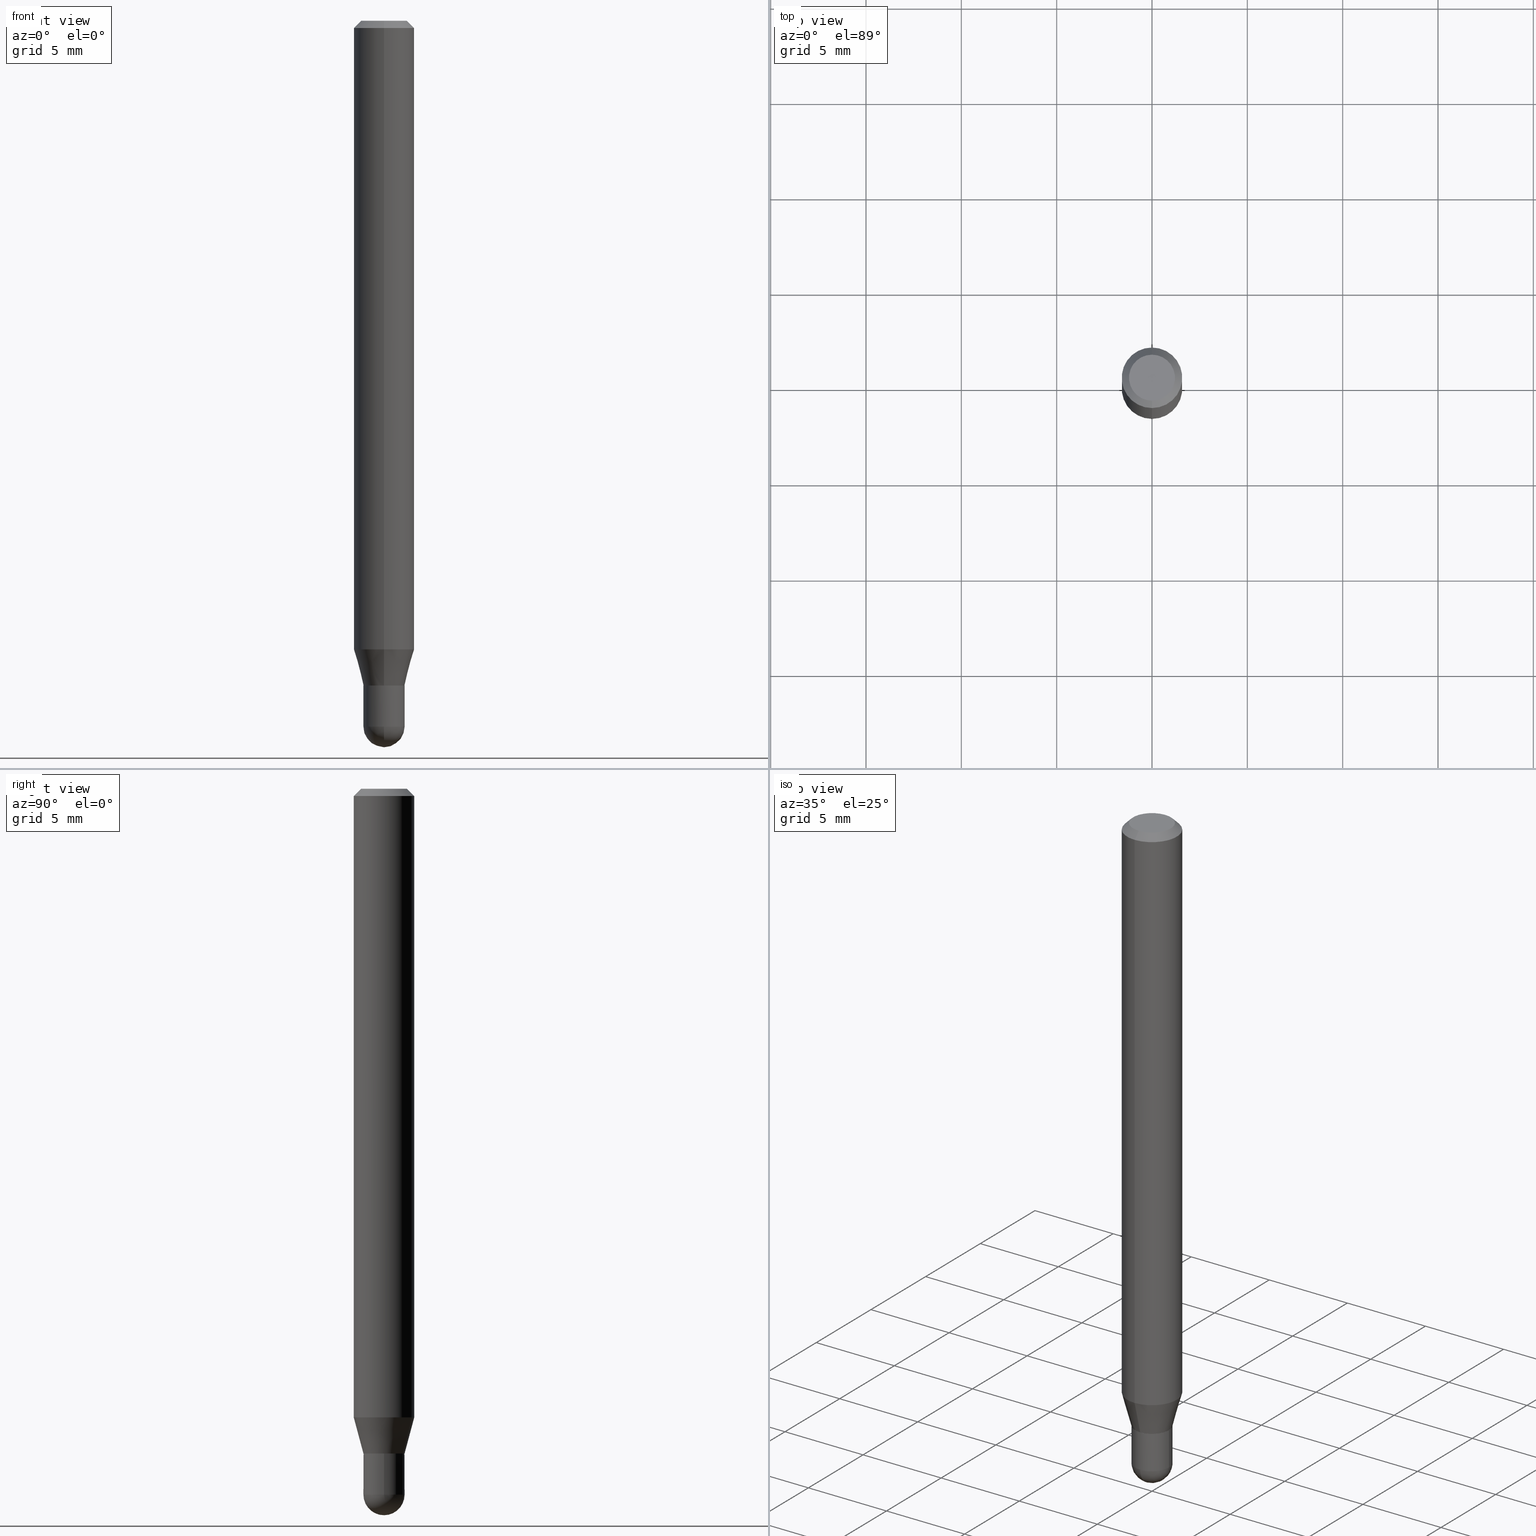
[diagram: canonical four-view strip — front | top / right | iso, engineering-drawing reading convention]
A machine part, canonical four-view strip (front | top / right | iso — engineering-drawing reading convention). The complete STEP part file that produces these views, byte-faithful:
ISO-10303-21;
HEADER;
FILE_DESCRIPTION (( 'STEP AP203' ),
    '1' );
FILE_NAME ('04379.STEP',
    '2024-03-08T19:00:55',
    ( '' ),
    ( '' ),
    'SwSTEP 2.0',
    'SolidWorks 2023',
    '' );
FILE_SCHEMA (( 'CONFIG_CONTROL_DESIGN' ));
ENDSEC;

DATA;
#1 = CONICAL_SURFACE ( 'NONE', #106, 0.06250000000000000000, 0.7853981633974483900 ) ;
#2 = FACE_OUTER_BOUND ( 'NONE', #251, .T. ) ;
#3 = EDGE_LOOP ( 'NONE', ( #185, #88, #368, #208 ) ) ;
#4 = CC_DESIGN_APPROVAL ( #33, ( #69 ) ) ;
#5 = APPROVAL ( #99, 'UNSPECIFIED' ) ;
#6 = DIRECTION ( 'NONE',  ( -2.445468806185136597E-29, 3.491481338843145583E-15, 1.000000000000000000 ) ) ;
#7 = DIRECTION ( 'NONE',  ( -6.982962677686265922E-15, -1.000000000000000000, 3.491555958414317221E-15 ) ) ;
#8 = VERTEX_POINT ( 'NONE', #51 ) ;
#9 = DIRECTION ( 'NONE',  ( -6.982962677686266711E-15, -1.000000000000000000, 3.491555958414317615E-15 ) ) ;
#10 = ORIENTED_EDGE ( 'NONE', *, *, #238, .F. ) ;
#11 = CC_DESIGN_DATE_AND_TIME_ASSIGNMENT ( #416, #488, ( #140 ) ) ;
#12 = ORIENTED_EDGE ( 'NONE', *, *, #380, .T. ) ;
#13 = ORIENTED_EDGE ( 'NONE', *, *, #115, .T. ) ;
#14 = AXIS2_PLACEMENT_3D ( 'NONE', #37, #508, #275 ) ;
#15 = ORIENTED_EDGE ( 'NONE', *, *, #303, .T. ) ;
#16 = DATE_AND_TIME ( #226, #75 ) ;
#17 = ORIENTED_EDGE ( 'NONE', *, *, #194, .T. ) ;
#18 = PERSON_AND_ORGANIZATION ( #449, #464 ) ;
#19 = ADVANCED_FACE ( 'NONE', ( #79 ), #346, .T. ) ;
#20 = DIRECTION ( 'NONE',  ( -6.982962677686265922E-15, -1.000000000000000000, 6.427877632151214487E-15 ) ) ;
#21 = APPROVAL_STATUS ( 'not_yet_approved' ) ;
#22 = CARTESIAN_POINT ( 'NONE',  ( 4.364351673553919652E-16, 0.06249999999999995143, -0.01500000000000028394 ) ) ;
#23 = VECTOR ( 'NONE', #480, 39.37007874015748143 ) ;
#24 = DIRECTION ( 'NONE',  ( 1.000000000000000000, -6.982962677686265922E-15, 4.883557194083112901E-29 ) ) ;
#25 = PERSON_AND_ORGANIZATION ( #449, #464 ) ;
#26 = DIRECTION ( 'NONE',  ( -2.445416699617084767E-29, 3.491555958414317221E-15, 1.000000000000000000 ) ) ;
#27 = CARTESIAN_POINT ( 'NONE',  ( -2.932844324627895747E-16, -0.04200000000000478351, -1.372500000000000275 ) ) ;
#28 = VECTOR ( 'NONE', #232, 39.37007874015748143 ) ;
#29 = APPLICATION_CONTEXT ( 'configuration controlled 3d designs of mechanical parts and assemblies' ) ;
#30 = ORIENTED_EDGE ( 'NONE', *, *, #511, .T. ) ;
#31 = DIRECTION ( 'NONE',  ( -2.445416699617084767E-29, 3.491555958414317221E-15, 1.000000000000000000 ) ) ;
#32 = FACE_OUTER_BOUND ( 'NONE', #412, .T. ) ;
#33 = APPROVAL ( #21, 'UNSPECIFIED' ) ;
#34 = CARTESIAN_POINT ( 'NONE',  ( 3.668125049425643686E-31, -5.237333937621498511E-17, -0.01500000000000006710 ) ) ;
#35 = CIRCLE ( 'NONE', #14, 0.04250000000000020428 ) ;
#36 = ORIENTED_EDGE ( 'NONE', *, *, #80, .T. ) ;
#37 = CARTESIAN_POINT ( 'NONE',  ( 3.356334420224448716E-29, -4.792160552923651095E-15, -1.372500000000000275 ) ) ;
#38 = VERTEX_POINT ( 'NONE', #481 ) ;
#39 = EDGE_CURVE ( 'NONE', #57, #49, #240, .T. ) ;
#40 = CARTESIAN_POINT ( 'NONE',  ( -2.967759138016342088E-16, -0.04250000000000499212, -1.372499999999999831 ) ) ;
#41 = CC_DESIGN_PERSON_AND_ORGANIZATION_ASSIGNMENT ( #408, #377, ( #389 ) ) ;
#42 = CARTESIAN_POINT ( 'NONE',  ( 3.356334420224448716E-29, -4.792160552923651095E-15, -1.372500000000000275 ) ) ;
#43 = CARTESIAN_POINT ( 'NONE',  ( 3.356405936489099934E-29, -4.792058137562217412E-15, -1.372500000000000275 ) ) ;
#44 = CIRCLE ( 'NONE', #386, 0.04249999999999995448 ) ;
#45 = FACE_OUTER_BOUND ( 'NONE', #317, .T. ) ;
#46 = EDGE_CURVE ( 'NONE', #164, #403, #413, .T. ) ;
#47 = ORIENTED_EDGE ( 'NONE', *, *, #353, .T. ) ;
#48 = ORIENTED_EDGE ( 'NONE', *, *, #349, .T. ) ;
#49 = VERTEX_POINT ( 'NONE', #139 ) ;
#50 = LINE ( 'NONE', #391, #150 ) ;
#51 = CARTESIAN_POINT ( 'NONE',  ( 0.04250000000000000999, -5.237222008264719754E-15, -1.457500000000000240 ) ) ;
#52 = LINE ( 'NONE', #399, #424 ) ;
#53 = VERTEX_POINT ( 'NONE', #178 ) ;
#54 = DIRECTION ( 'NONE',  ( -6.982962677686266711E-15, -1.000000000000000000, 6.427877632151260241E-15 ) ) ;
#55 = AXIS2_PLACEMENT_3D ( 'NONE', #321, #213, #245 ) ;
#56 = ORIENTED_EDGE ( 'NONE', *, *, #115, .F. ) ;
#57 = VERTEX_POINT ( 'NONE', #27 ) ;
#58 = CARTESIAN_POINT ( 'NONE',  ( 3.560636328285825248E-29, -5.094038800260261442E-15, -1.457500000000000240 ) ) ;
#59 = DIRECTION ( 'NONE',  ( -1.000000000000000000, 6.982962677686265922E-15, -4.883557194083112340E-29 ) ) ;
#60 = DIRECTION ( 'NONE',  ( 7.105427357601001070E-15, 1.000000000000000000, 0.000000000000000000 ) ) ;
#61 = CLOSED_SHELL ( 'NONE', ( #133, #407, #252, #101, #296 ) ) ;
#62 = CIRCLE ( 'NONE', #289, 0.04250000000000000999 ) ;
#63 = FACE_OUTER_BOUND ( 'NONE', #3, .T. ) ;
#64 = CC_DESIGN_PERSON_AND_ORGANIZATION_ASSIGNMENT ( #25, #104, ( #180 ) ) ;
#65 = COORDINATED_UNIVERSAL_TIME_OFFSET ( 5, 0, .BEHIND. ) ;
#66 = CARTESIAN_POINT ( 'NONE',  ( 1.601666985731479033E-45, -2.286853569087802124E-31, -6.549668962276554042E-17 ) ) ;
#67 = DIRECTION ( 'NONE',  ( -6.982962677686265922E-15, -1.000000000000000000, 3.483106191921935554E-15 ) ) ;
#68 = CIRCLE ( 'NONE', #463, 0.06250000000000000000 ) ;
#69 = PRODUCT_DEFINITION_FORMATION_WITH_SPECIFIED_SOURCE ( 'ANY', '', #389, .NOT_KNOWN. ) ;
#70 = CARTESIAN_POINT ( 'NONE',  ( 3.840629472727447874E-16, 0.04749999999999999362, -2.313455976474456035E-16 ) ) ;
#71 = DIRECTION ( 'NONE',  ( 1.839019923739650408E-15, 0.2588190451025320082, 0.9659258262890650926 ) ) ;
#72 = PRODUCT_DEFINITION_SHAPE ( 'NONE', 'NONE',  #180 ) ;
#73 = DIRECTION ( 'NONE',  ( -2.445468806185136597E-29, 3.491481338843145583E-15, 1.000000000000000000 ) ) ;
#74 = ORIENTED_EDGE ( 'NONE', *, *, #475, .T. ) ;
#75 = LOCAL_TIME ( 14, 0, 55.00000000000000000, #65 ) ;
#76 = CARTESIAN_POINT ( 'NONE',  ( 4.440892098500625669E-16, 0.06250000000000000000, -2.182222474008948016E-16 ) ) ;
#77 = ORIENTED_EDGE ( 'NONE', *, *, #93, .F. ) ;
#78 = DIRECTION ( 'NONE',  ( -2.445416699617084767E-29, 3.491555958414317221E-15, 1.000000000000000000 ) ) ;
#79 = FACE_OUTER_BOUND ( 'NONE', #125, .T. ) ;
#80 = EDGE_CURVE ( 'NONE', #286, #441, #278, .T. ) ;
#81 = CARTESIAN_POINT ( 'NONE',  ( 0.000000000000000000, 0.000000000000000000, 0.000000000000000000 ) ) ;
#82 = ORIENTED_EDGE ( 'NONE', *, *, #283, .T. ) ;
#83 = CIRCLE ( 'NONE', #374, 0.04250000000000000999 ) ;
#84 = APPROVAL ( #107, 'UNSPECIFIED' ) ;
#85 = CARTESIAN_POINT ( 'NONE',  ( 0.000000000000000000, 0.000000000000000000, 0.000000000000000000 ) ) ;
#86 = ORIENTED_EDGE ( 'NONE', *, *, #225, .T. ) ;
#87 = CC_DESIGN_APPROVAL ( #5, ( #140 ) ) ;
#88 = ORIENTED_EDGE ( 'NONE', *, *, #137, .T. ) ;
#89 = DIRECTION ( 'NONE',  ( -6.982962677686265922E-15, -1.000000000000000000, 3.491555958414316826E-15 ) ) ;
#90 = EDGE_LOOP ( 'NONE', ( #248, #12 ) ) ;
#91 = DIRECTION ( 'NONE',  ( -2.445416699617084767E-29, 3.491555958414317221E-15, 1.000000000000000000 ) ) ;
#92 = ORIENTED_EDGE ( 'NONE', *, *, #471, .F. ) ;
#93 = EDGE_CURVE ( 'NONE', #8, #164, #227, .T. ) ;
#94 = APPROVAL_DATE_TIME ( #135, #84 ) ;
#95 = AXIS2_PLACEMENT_3D ( 'NONE', #66, #503, #146 ) ;
#96 = DIRECTION ( 'NONE',  ( -6.982962677686265922E-15, -1.000000000000000000, 4.370956789862821150E-15 ) ) ;
#97 = AXIS2_PLACEMENT_3D ( 'NONE', #85, #132, #282 ) ;
#98 = ORIENTED_EDGE ( 'NONE', *, *, #225, .F. ) ;
#99 = APPROVAL_STATUS ( 'not_yet_approved' ) ;
#100 = DIRECTION ( 'NONE',  ( -6.982962677686265922E-15, -1.000000000000000000, 4.370956789862821150E-15 ) ) ;
#101 = ADVANCED_FACE ( 'NONE', ( #63 ), #103, .T. ) ;
#102 = APPLICATION_PROTOCOL_DEFINITION ( 'international standard', 'config_control_design', 1994, #29 ) ;
#103 = SPHERICAL_SURFACE ( 'NONE', #118, 0.04249999999999995448 ) ;
#104 = PERSON_AND_ORGANIZATION_ROLE ( 'creator' ) ;
#105 = DIRECTION ( 'NONE',  ( 4.937700262164548042E-15, 0.7071067811865451302, -0.7071067811865499042 ) ) ;
#106 = AXIS2_PLACEMENT_3D ( 'NONE', #425, #345, #116 ) ;
#107 = APPROVAL_STATUS ( 'not_yet_approved' ) ;
#108 = CARTESIAN_POINT ( 'NONE',  ( 3.002043058586749878E-16, 0.04199999999999520783, -1.372500000000000719 ) ) ;
#109 = PLANE ( 'NONE',  #348 ) ;
#110 = PLANE ( 'NONE',  #491 ) ;
#111 = AXIS2_PLACEMENT_3D ( 'NONE', #376, #337, #305 ) ;
#112 = AXIS2_PLACEMENT_3D ( 'NONE', #402, #163, #54 ) ;
#113 = CC_DESIGN_DATE_AND_TIME_ASSIGNMENT ( #262, #256, ( #180 ) ) ;
#114 = CARTESIAN_POINT ( 'NONE',  ( 3.316907271900976096E-16, 0.04749999999999999362, -1.985972528360628209E-16 ) ) ;
#115 = EDGE_CURVE ( 'NONE', #388, #49, #204, .T. ) ;
#116 = DIRECTION ( 'NONE',  ( 6.982962677686265922E-15, 1.000000000000000000, -3.483106191921935554E-15 ) ) ;
#117 = CARTESIAN_POINT ( 'NONE',  ( 0.000000000000000000, 0.000000000000000000, 0.000000000000000000 ) ) ;
#118 = AXIS2_PLACEMENT_3D ( 'NONE', #500, #24, #20 ) ;
#119 = CC_DESIGN_SECURITY_CLASSIFICATION ( #140, ( #69 ) ) ;
#120 = DIRECTION ( 'NONE',  ( -6.982962677686265922E-15, -1.000000000000000000, 6.504399984914913214E-15 ) ) ;
#121 = CARTESIAN_POINT ( 'NONE',  ( -3.773273898774340269E-16, -0.04749999999999999362, 1.003522184019144980E-16 ) ) ;
#122 = ORIENTED_EDGE ( 'NONE', *, *, #471, .T. ) ;
#123 = ORIENTED_EDGE ( 'NONE', *, *, #349, .F. ) ;
#124 = DIRECTION ( 'NONE',  ( 5.024295867785445738E-15, 0.7071067811861817543, 0.7071067811869132802 ) ) ;
#125 = EDGE_LOOP ( 'NONE', ( #30, #218, #400, #123 ) ) ;
#126 = ORIENTED_EDGE ( 'NONE', *, *, #479, .T. ) ;
#127 = ORIENTED_EDGE ( 'NONE', *, *, #511, .F. ) ;
#128 = AXIS2_PLACEMENT_3D ( 'NONE', #117, #431, #506 ) ;
#129 = CYLINDRICAL_SURFACE ( 'NONE', #130, 0.06250000000000000000 ) ;
#130 = AXIS2_PLACEMENT_3D ( 'NONE', #81, #91, #89 ) ;
#131 = EDGE_LOOP ( 'NONE', ( #478, #36, #254, #98 ) ) ;
#132 = DIRECTION ( 'NONE',  ( -2.445416699617084767E-29, 3.491555958414317221E-15, 1.000000000000000000 ) ) ;
#133 = ADVANCED_FACE ( 'NONE', ( #446 ), #371, .T. ) ;
#134 = ORIENTED_EDGE ( 'NONE', *, *, #141, .T. ) ;
#135 = DATE_AND_TIME ( #268, #281 ) ;
#136 = ORIENTED_EDGE ( 'NONE', *, *, #462, .F. ) ;
#137 = EDGE_CURVE ( 'NONE', #286, #181, #44, .T. ) ;
#138 = AXIS2_PLACEMENT_3D ( 'NONE', #43, #6, #162 ) ;
#139 = CARTESIAN_POINT ( 'NONE',  ( -2.967759138016294264E-16, -0.04250000000000431211, -1.372000000000000108 ) ) ;
#140 = SECURITY_CLASSIFICATION ( '', '', #330 ) ;
#141 = EDGE_CURVE ( 'NONE', #322, #49, #174, .T. ) ;
#142 = EDGE_LOOP ( 'NONE', ( #398, #363, #437, #56 ) ) ;
#143 = APPROVAL_ROLE ( '' ) ;
#144 = DIRECTION ( 'NONE',  ( -6.982962677686266711E-15, -1.000000000000000000, 0.000000000000000000 ) ) ;
#145 =( NAMED_UNIT ( * ) SI_UNIT ( $, .STERADIAN. ) SOLID_ANGLE_UNIT ( ) );
#146 = DIRECTION ( 'NONE',  ( -6.982962677686266711E-15, -1.000000000000000000, 3.491555958414317615E-15 ) ) ;
#147 = DIRECTION ( 'NONE',  ( 1.000000000000000000, -6.982962677686266711E-15, 4.876176775795935793E-29 ) ) ;
#148 = VECTOR ( 'NONE', #343, 39.37007874015748143 ) ;
#149 = VECTOR ( 'NONE', #451, 39.37007874015748143 ) ;
#150 = VECTOR ( 'NONE', #324, 39.37007874015748143 ) ;
#151 = CARTESIAN_POINT ( 'NONE',  ( 3.356334420224449277E-29, -4.792160552923651884E-15, -1.372500000000000497 ) ) ;
#152 = FACE_OUTER_BOUND ( 'NONE', #90, .T. ) ;
#153 = CARTESIAN_POINT ( 'NONE',  ( -4.287811248607203282E-16, -0.06250000000000005551, -0.01499999999999984852 ) ) ;
#154 = ORIENTED_EDGE ( 'NONE', *, *, #380, .F. ) ;
#155 = VECTOR ( 'NONE', #512, 39.37007874015748143 ) ;
#156 = LINE ( 'NONE', #351, #155 ) ;
#157 = FACE_OUTER_BOUND ( 'NONE', #474, .T. ) ;
#158 = DIRECTION ( 'NONE',  ( -6.982962677686265922E-15, -1.000000000000000000, 6.427877632151176622E-15 ) ) ;
#159 = CIRCLE ( 'NONE', #272, 0.04199999999999999567 ) ;
#160 = ORIENTED_EDGE ( 'NONE', *, *, #212, .T. ) ;
#161 =( LENGTH_UNIT ( ) NAMED_UNIT ( * ) SI_UNIT ( $, .METRE. ) );
#162 = DIRECTION ( 'NONE',  ( 1.000000000000000000, -6.982962677686276177E-15, 0.000000000000000000 ) ) ;
#163 = DIRECTION ( 'NONE',  ( -2.445416699617084767E-29, 3.491555958414317221E-15, 1.000000000000000000 ) ) ;
#164 = VERTEX_POINT ( 'NONE', #406 ) ;
#165 = FACE_OUTER_BOUND ( 'NONE', #298, .T. ) ;
#166 = ORIENTED_EDGE ( 'NONE', *, *, #93, .T. ) ;
#167 = VERTEX_POINT ( 'NONE', #456 ) ;
#168 = CARTESIAN_POINT ( 'NONE',  ( 3.019806626980780501E-16, 0.04249999999999488215, -1.457500000000000462 ) ) ;
#169 = VERTEX_POINT ( 'NONE', #108 ) ;
#170 = EDGE_CURVE ( 'NONE', #57, #169, #159, .T. ) ;
#171 = APPROVAL_DATE_TIME ( #16, #5 ) ;
#172 = ORIENTED_EDGE ( 'NONE', *, *, #335, .T. ) ;
#173 = PERSON_AND_ORGANIZATION_ROLE ( 'design_supplier' ) ;
#174 = LINE ( 'NONE', #489, #149 ) ;
#175 = ORIENTED_EDGE ( 'NONE', *, *, #170, .F. ) ;
#176 = PERSON_AND_ORGANIZATION_ROLE ( 'classification_officer' ) ;
#177 = CIRCLE ( 'NONE', #423, 0.06250000000000000000 ) ;
#178 = CARTESIAN_POINT ( 'NONE',  ( -0.04250000000000000999, -4.638465431765009073E-15, -1.457500000000000240 ) ) ;
#179 = AXIS2_PLACEMENT_3D ( 'NONE', #216, #366, #158 ) ;
#180 = PRODUCT_DEFINITION ( 'UNKNOWN', '', #69, #183 ) ;
#181 = VERTEX_POINT ( 'NONE', #411 ) ;
#182 = PERSON_AND_ORGANIZATION ( #449, #464 ) ;
#183 = DESIGN_CONTEXT ( 'detailed design', #29, 'design' ) ;
#184 = DIRECTION ( 'NONE',  ( -6.982962677686266711E-15, -1.000000000000000000, 3.491555958414317615E-15 ) ) ;
#185 = ORIENTED_EDGE ( 'NONE', *, *, #80, .F. ) ;
#186 =( NAMED_UNIT ( * ) PLANE_ANGLE_UNIT ( ) SI_UNIT ( $, .RADIAN. ) );
#187 = DIRECTION ( 'NONE',  ( -6.982962677686266711E-15, -1.000000000000000000, 6.427877632151260241E-15 ) ) ;
#188 = EDGE_CURVE ( 'NONE', #38, #323, #404, .T. ) ;
#189 = DIRECTION ( 'NONE',  ( -2.445416699617084767E-29, 3.491555958414317221E-15, 1.000000000000000000 ) ) ;
#190 = EDGE_CURVE ( 'NONE', #394, #293, #414, .T. ) ;
#191 = DIRECTION ( 'NONE',  ( 2.445416699617084767E-29, -3.491555958414317221E-15, -1.000000000000000000 ) ) ;
#192 = EDGE_LOOP ( 'NONE', ( #510, #47, #493, #77, #172 ) ) ;
#193 = CARTESIAN_POINT ( 'NONE',  ( 3.564270785014837509E-29, -5.088834051363884851E-15, -1.457500000000000240 ) ) ;
#194 = EDGE_CURVE ( 'NONE', #323, #38, #355, .T. ) ;
#195 = CARTESIAN_POINT ( 'NONE',  ( -2.967759138016342088E-16, -0.04250000000000499212, -1.372499999999999831 ) ) ;
#196 = AXIS2_PLACEMENT_3D ( 'NONE', #325, #211, #361 ) ;
#197 = AXIS2_PLACEMENT_3D ( 'NONE', #151, #220, #222 ) ;
#198 = ADVANCED_FACE ( 'NONE', ( #260 ), #495, .F. ) ;
#199 = AXIS2_PLACEMENT_3D ( 'NONE', #455, #452, #405 ) ;
#200 = LINE ( 'NONE', #76, #28 ) ;
#201 = LINE ( 'NONE', #195, #482 ) ;
#202 = ADVANCED_FACE ( 'NONE', ( #409 ), #395, .T. ) ;
#203 = EDGE_LOOP ( 'NONE', ( #175, #246 ) ) ;
#204 = CIRCLE ( 'NONE', #264, 0.04249999999999964917 ) ;
#205 = CONICAL_SURFACE ( 'NONE', #242, 0.04250000000000020428, 0.2617993877991576235 ) ;
#206 = CIRCLE ( 'NONE', #319, 0.04250000000000000999 ) ;
#207 = PLANE ( 'NONE',  #387 ) ;
#208 = ORIENTED_EDGE ( 'NONE', *, *, #247, .F. ) ;
#209 = ORIENTED_EDGE ( 'NONE', *, *, #212, .F. ) ;
#210 = DIRECTION ( 'NONE',  ( -2.445468806185136597E-29, 3.491481338843145583E-15, 1.000000000000000000 ) ) ;
#211 = DIRECTION ( 'NONE',  ( -2.445416699617084767E-29, 3.491555958414317221E-15, 1.000000000000000000 ) ) ;
#212 = EDGE_CURVE ( 'NONE', #293, #444, #372, .T. ) ;
#213 = DIRECTION ( 'NONE',  ( -2.445468806185136597E-29, 3.491481338843145583E-15, 1.000000000000000000 ) ) ;
#214 = ORIENTED_EDGE ( 'NONE', *, *, #170, .T. ) ;
#215 = CONICAL_SURFACE ( 'NONE', #501, 0.04199999999999999567, 0.7853981633969275844 ) ;
#216 = CARTESIAN_POINT ( 'NONE',  ( 3.356334420224448716E-29, -4.792160552923651095E-15, -1.372500000000000275 ) ) ;
#217 = APPROVAL_PERSON_ORGANIZATION ( #182, #84, #223 ) ;
#218 = ORIENTED_EDGE ( 'NONE', *, *, #312, .T. ) ;
#219 = DIRECTION ( 'NONE',  ( -2.445416699617084767E-29, 3.491555958414317221E-15, 1.000000000000000000 ) ) ;
#220 = DIRECTION ( 'NONE',  ( -2.445416699617084767E-29, 3.491555958414317221E-15, 1.000000000000000000 ) ) ;
#221 = AXIS2_PLACEMENT_3D ( 'NONE', #436, #290, #396 ) ;
#222 = DIRECTION ( 'NONE',  ( -6.982962677686265922E-15, -1.000000000000000000, 6.504399984914913214E-15 ) ) ;
#223 = APPROVAL_ROLE ( '' ) ;
#224 = DIRECTION ( 'NONE',  ( -6.982962677686265922E-15, -1.000000000000000000, 6.504399984914913214E-15 ) ) ;
#225 = EDGE_CURVE ( 'NONE', #181, #8, #379, .T. ) ;
#226 = CALENDAR_DATE ( 2024, 8, 3 ) ;
#227 = LINE ( 'NONE', #308, #148 ) ;
#228 = ADVANCED_FACE ( 'NONE', ( #417 ), #215, .T. ) ;
#229 = CARTESIAN_POINT ( 'NONE',  ( 3.564270785014837509E-29, -5.088834051363884851E-15, -1.457500000000000240 ) ) ;
#230 = LOCAL_TIME ( 14, 0, 55.00000000000000000, #306 ) ;
#231 = ORIENTED_EDGE ( 'NONE', *, *, #258, .T. ) ;
#232 = DIRECTION ( 'NONE',  ( -2.445416699617084487E-29, 3.491555958414317221E-15, 1.000000000000000000 ) ) ;
#233 = DIRECTION ( 'NONE',  ( -2.445416699617084767E-29, 3.491555958414317221E-15, 1.000000000000000000 ) ) ;
#234 = DIRECTION ( 'NONE',  ( 6.982962677686265922E-15, 1.000000000000000000, -3.483106191921935554E-15 ) ) ;
#235 = VECTOR ( 'NONE', #71, 39.37007874015748854 ) ;
#236 = AXIS2_PLACEMENT_3D ( 'NONE', #485, #253, #120 ) ;
#237 = CARTESIAN_POINT ( 'NONE',  ( 4.440892098500944664E-16, 0.06249999999999550360, -1.297858983848626080 ) ) ;
#238 = EDGE_CURVE ( 'NONE', #293, #394, #342, .T. ) ;
#239 = DIRECTION ( 'NONE',  ( 1.000000000000000000, -6.982962677686273810E-15, 0.000000000000000000 ) ) ;
#240 = LINE ( 'NONE', #291, #364 ) ;
#241 = ORIENTED_EDGE ( 'NONE', *, *, #353, .F. ) ;
#242 = AXIS2_PLACEMENT_3D ( 'NONE', #311, #313, #509 ) ;
#243 = LOCAL_TIME ( 14, 0, 55.00000000000000000, #265 ) ;
#244 = ORIENTED_EDGE ( 'NONE', *, *, #194, .F. ) ;
#245 = DIRECTION ( 'NONE',  ( 1.000000000000000000, -6.982962677686276177E-15, 0.000000000000000000 ) ) ;
#246 = ORIENTED_EDGE ( 'NONE', *, *, #440, .F. ) ;
#247 = EDGE_CURVE ( 'NONE', #441, #53, #62, .T. ) ;
#248 = ORIENTED_EDGE ( 'NONE', *, *, #46, .T. ) ;
#249 = ORIENTED_EDGE ( 'NONE', *, *, #315, .T. ) ;
#250 = CARTESIAN_POINT ( 'NONE',  ( 3.019806626980745003E-16, 0.04249999999999498623, -1.372000000000000552 ) ) ;
#251 = EDGE_LOOP ( 'NONE', ( #261, #17, #126, #505 ) ) ;
#252 = ADVANCED_FACE ( 'NONE', ( #152 ), #110, .F. ) ;
#253 = DIRECTION ( 'NONE',  ( -2.445416699617084767E-29, 3.491555958414317221E-15, 1.000000000000000000 ) ) ;
#254 = ORIENTED_EDGE ( 'NONE', *, *, #335, .F. ) ;
#255 = VECTOR ( 'NONE', #105, 39.37007874015748143 ) ;
#256 = DATE_TIME_ROLE ( 'creation_date' ) ;
#257 = CARTESIAN_POINT ( 'NONE',  ( 3.355111711874641122E-29, -4.790414774944444079E-15, -1.372000000000000330 ) ) ;
#258 = EDGE_CURVE ( 'NONE', #444, #473, #177, .T. ) ;
#259 = PERSON_AND_ORGANIZATION ( #449, #464 ) ;
#260 = FACE_OUTER_BOUND ( 'NONE', #359, .T. ) ;
#261 = ORIENTED_EDGE ( 'NONE', *, *, #303, .F. ) ;
#262 = DATE_AND_TIME ( #339, #492 ) ;
#263 = CARTESIAN_POINT ( 'NONE',  ( 3.356334420224449277E-29, -4.792160552923651884E-15, -1.372500000000000497 ) ) ;
#264 = AXIS2_PLACEMENT_3D ( 'NONE', #257, #219, #187 ) ;
#265 = COORDINATED_UNIVERSAL_TIME_OFFSET ( 5, 0, .BEHIND. ) ;
#266 = CARTESIAN_POINT ( 'NONE',  ( 0.000000000000000000, 0.000000000000000000, 0.000000000000000000 ) ) ;
#267 = ADVANCED_FACE ( 'NONE', ( #277 ), #109, .F. ) ;
#268 = CALENDAR_DATE ( 2024, 8, 3 ) ;
#269 = DIRECTION ( 'NONE',  ( -2.445416699617084767E-29, 3.491555958414317221E-15, 1.000000000000000000 ) ) ;
#270 = CYLINDRICAL_SURFACE ( 'NONE', #128, 0.04250000000000000999 ) ;
#271 = DIRECTION ( 'NONE',  ( 6.982962677686265922E-15, 1.000000000000000000, -3.491555958414317221E-15 ) ) ;
#272 = AXIS2_PLACEMENT_3D ( 'NONE', #263, #189, #300 ) ;
#273 = CC_DESIGN_APPROVAL ( #84, ( #180 ) ) ;
#274 = ADVANCED_FACE ( 'NONE', ( #344 ), #205, .T. ) ;
#275 = DIRECTION ( 'NONE',  ( -6.982962677686265922E-15, -1.000000000000000000, 6.427877632151176622E-15 ) ) ;
#276 = DIRECTION ( 'NONE',  ( 1.000000000000000000, -6.982962677686273810E-15, 0.000000000000000000 ) ) ;
#277 = FACE_OUTER_BOUND ( 'NONE', #367, .T. ) ;
#278 = CIRCLE ( 'NONE', #422, 0.04249999999999995448 ) ;
#279 = ADVANCED_FACE ( 'NONE', ( #32 ), #1, .T. ) ;
#280 = AXIS2_PLACEMENT_3D ( 'NONE', #453, #450, #100 ) ;
#281 = LOCAL_TIME ( 14, 0, 55.00000000000000000, #336 ) ;
#282 = DIRECTION ( 'NONE',  ( -6.982962677686265922E-15, -1.000000000000000000, 3.491555958414316826E-15 ) ) ;
#283 = EDGE_CURVE ( 'NONE', #167, #322, #35, .T. ) ;
#284 = LENGTH_MEASURE_WITH_UNIT ( LENGTH_MEASURE( 0.02539999999999999897 ), #161 );
#285 = ORIENTED_EDGE ( 'NONE', *, *, #188, .T. ) ;
#286 = VERTEX_POINT ( 'NONE', #504 ) ;
#287 = CARTESIAN_POINT ( 'NONE',  ( 0.000000000000000000, 0.000000000000000000, 0.000000000000000000 ) ) ;
#288 = ORIENTED_EDGE ( 'NONE', *, *, #479, .F. ) ;
#289 = AXIS2_PLACEMENT_3D ( 'NONE', #193, #73, #276 ) ;
#290 = DIRECTION ( 'NONE',  ( 1.000000000000000000, -6.982962677686265922E-15, 4.883557194083112901E-29 ) ) ;
#291 = CARTESIAN_POINT ( 'NONE',  ( -2.932844324627895747E-16, -0.04200000000000478351, -1.372500000000000275 ) ) ;
#292 = FACE_OUTER_BOUND ( 'NONE', #203, .T. ) ;
#293 = VERTEX_POINT ( 'NONE', #70 ) ;
#294 = EDGE_LOOP ( 'NONE', ( #486, #82, #48, #244 ) ) ;
#295 = ORIENTED_EDGE ( 'NONE', *, *, #315, .F. ) ;
#296 = ADVANCED_FACE ( 'NONE', ( #157 ), #270, .T. ) ;
#297 = AXIS2_PLACEMENT_3D ( 'NONE', #421, #31, #461 ) ;
#298 = EDGE_LOOP ( 'NONE', ( #285, #15, #490, #288 ) ) ;
#299 = PERSON_AND_ORGANIZATION ( #449, #464 ) ;
#300 = DIRECTION ( 'NONE',  ( -6.982962677686265922E-15, -1.000000000000000000, 6.504399984914913214E-15 ) ) ;
#301 = SHAPE_DEFINITION_REPRESENTATION ( #72, #356 ) ;
#302 = DIRECTION ( 'NONE',  ( -2.445468806185136597E-29, 3.491481338843145583E-15, 1.000000000000000000 ) ) ;
#303 = EDGE_CURVE ( 'NONE', #323, #444, #200, .T. ) ;
#304 = APPROVAL_DATE_TIME ( #448, #33 ) ;
#305 = DIRECTION ( 'NONE',  ( 1.000000000000000000, -6.982962677686273810E-15, 0.000000000000000000 ) ) ;
#306 = COORDINATED_UNIVERSAL_TIME_OFFSET ( 5, 0, .BEHIND. ) ;
#307 = AXIS2_PLACEMENT_3D ( 'NONE', #467, #428, #234 ) ;
#308 = CARTESIAN_POINT ( 'NONE',  ( 0.04250000000000000999, -2.967759138016664042E-16, 2.072375129713273202E-30 ) ) ;
#309 = ORIENTED_EDGE ( 'NONE', *, *, #141, .F. ) ;
#310 = FACE_OUTER_BOUND ( 'NONE', #487, .T. ) ;
#311 = CARTESIAN_POINT ( 'NONE',  ( 3.356334420224448716E-29, -4.792160552923651095E-15, -1.372500000000000275 ) ) ;
#312 = EDGE_CURVE ( 'NONE', #167, #323, #383, .T. ) ;
#313 = DIRECTION ( 'NONE',  ( -2.445416699617084767E-29, 3.491555958414317221E-15, 1.000000000000000000 ) ) ;
#314 = DIRECTION ( 'NONE',  ( -4.851104656540964275E-15, -0.7071067811865500152, -0.7071067811865450192 ) ) ;
#315 = EDGE_CURVE ( 'NONE', #394, #473, #384, .T. ) ;
#316 = CARTESIAN_POINT ( 'NONE',  ( 2.967759138016998322E-16, 0.04249999999999520828, -1.372500000000000497 ) ) ;
#317 = EDGE_LOOP ( 'NONE', ( #320, #327, #13, #309 ) ) ;
#318 = CARTESIAN_POINT ( 'NONE',  ( -4.364351673553916201E-16, -0.06250000000000000000, 2.182222474008948016E-16 ) ) ;
#319 = AXIS2_PLACEMENT_3D ( 'NONE', #476, #210, #239 ) ;
#320 = ORIENTED_EDGE ( 'NONE', *, *, #283, .F. ) ;
#321 = CARTESIAN_POINT ( 'NONE',  ( 3.356405936489099934E-29, -4.792058137562217412E-15, -1.372500000000000275 ) ) ;
#322 = VERTEX_POINT ( 'NONE', #40 ) ;
#323 = VERTEX_POINT ( 'NONE', #237 ) ;
#324 = DIRECTION ( 'NONE',  ( -2.445416699617084487E-29, 3.491555958414317221E-15, 1.000000000000000000 ) ) ;
#325 = CARTESIAN_POINT ( 'NONE',  ( 3.356334420224448716E-29, -4.792160552923651095E-15, -1.372500000000000275 ) ) ;
#326 = CARTESIAN_POINT ( 'NONE',  ( 4.440892098500945650E-16, 0.06249999999999995143, -0.01500000000000028394 ) ) ;
#327 = ORIENTED_EDGE ( 'NONE', *, *, #462, .T. ) ;
#328 = EDGE_CURVE ( 'NONE', #473, #444, #68, .T. ) ;
#329 = ORIENTED_EDGE ( 'NONE', *, *, #190, .F. ) ;
#330 = SECURITY_CLASSIFICATION_LEVEL ( 'unclassified' ) ;
#331 = CARTESIAN_POINT ( 'NONE',  ( 3.173806032851490413E-29, -4.531547268238220910E-15, -1.297858983848625858 ) ) ;
#332 = AXIS2_PLACEMENT_3D ( 'NONE', #340, #302, #147 ) ;
#333 = APPLICATION_PROTOCOL_DEFINITION ( 'international standard', 'config_control_design', 1994, #458 ) ;
#334 = DIRECTION ( 'NONE',  ( 1.000000000000000000, -7.105427357601001070E-15, 4.926315508542082329E-29 ) ) ;
#335 = EDGE_CURVE ( 'NONE', #8, #441, #83, .T. ) ;
#336 = COORDINATED_UNIVERSAL_TIME_OFFSET ( 5, 0, .BEHIND. ) ;
#337 = DIRECTION ( 'NONE',  ( -2.445468806185136597E-29, 3.491481338843145583E-15, 1.000000000000000000 ) ) ;
#338 = CC_DESIGN_PERSON_AND_ORGANIZATION_ASSIGNMENT ( #299, #445, ( #69 ) ) ;
#339 = CALENDAR_DATE ( 2024, 8, 3 ) ;
#340 = CARTESIAN_POINT ( 'NONE',  ( 0.000000000000000000, 0.000000000000000000, 0.000000000000000000 ) ) ;
#341 = AXIS2_PLACEMENT_3D ( 'NONE', #287, #78, #9 ) ;
#342 = CIRCLE ( 'NONE', #297, 0.04749999999999999362 ) ;
#343 = DIRECTION ( 'NONE',  ( -2.445468806185136877E-29, 3.491481338843145188E-15, 1.000000000000000000 ) ) ;
#344 = FACE_OUTER_BOUND ( 'NONE', #294, .T. ) ;
#345 = DIRECTION ( 'NONE',  ( 2.445416699617084767E-29, -3.491555958414317221E-15, -1.000000000000000000 ) ) ;
#346 = CONICAL_SURFACE ( 'NONE', #196, 0.04250000000000020428, 0.2617993877991576235 ) ;
#347 = DIRECTION ( 'NONE',  ( -1.807323732225379838E-15, -0.2588190451025252914, 0.9659258262890670910 ) ) ;
#348 = AXIS2_PLACEMENT_3D ( 'NONE', #114, #191, #271 ) ;
#349 = EDGE_CURVE ( 'NONE', #322, #38, #201, .T. ) ;
#350 = DIRECTION ( 'NONE',  ( -2.445416699617084767E-29, 3.491555958414317221E-15, 1.000000000000000000 ) ) ;
#351 = CARTESIAN_POINT ( 'NONE',  ( -0.04250000000000000999, 3.019806626980426500E-16, -2.090547413358335560E-30 ) ) ;
#352 = CARTESIAN_POINT ( 'NONE',  ( -0.04249999999999999611, -4.638465431765008284E-15, -1.372500000000000275 ) ) ;
#353 = EDGE_CURVE ( 'NONE', #53, #403, #156, .T. ) ;
#354 = ORIENTED_EDGE ( 'NONE', *, *, #39, .F. ) ;
#355 = CIRCLE ( 'NONE', #280, 0.06250000000000000000 ) ;
#356 = ADVANCED_BREP_SHAPE_REPRESENTATION ( '04379', ( #472, #477, #199 ), #415 ) ;
#357 = APPROVAL_PERSON_ORGANIZATION ( #499, #33, #497 ) ;
#358 = FACE_OUTER_BOUND ( 'NONE', #131, .T. ) ;
#359 = EDGE_LOOP ( 'NONE', ( #136, #127, #134, #122 ) ) ;
#360 = LINE ( 'NONE', #318, #23 ) ;
#361 = DIRECTION ( 'NONE',  ( -6.982962677686265922E-15, -1.000000000000000000, 6.427877632151176622E-15 ) ) ;
#362 = CYLINDRICAL_SURFACE ( 'NONE', #341, 0.04249999999999991979 ) ;
#363 = ORIENTED_EDGE ( 'NONE', *, *, #440, .T. ) ;
#364 = VECTOR ( 'NONE', #392, 39.37007874015748143 ) ;
#365 = VECTOR ( 'NONE', #314, 39.37007874015748143 ) ;
#366 = DIRECTION ( 'NONE',  ( -2.445416699617084767E-29, 3.491555958414317221E-15, 1.000000000000000000 ) ) ;
#367 = EDGE_LOOP ( 'NONE', ( #507, #397 ) ) ;
#368 = ORIENTED_EDGE ( 'NONE', *, *, #475, .F. ) ;
#369 = CC_DESIGN_PERSON_AND_ORGANIZATION_ASSIGNMENT ( #18, #173, ( #69 ) ) ;
#370 = COORDINATED_UNIVERSAL_TIME_OFFSET ( 5, 0, .BEHIND. ) ;
#371 = CYLINDRICAL_SURFACE ( 'NONE', #332, 0.04250000000000000999 ) ;
#372 = LINE ( 'NONE', #22, #255 ) ;
#373 = ADVANCED_FACE ( 'NONE', ( #310 ), #438, .T. ) ;
#374 = AXIS2_PLACEMENT_3D ( 'NONE', #229, #382, #390 ) ;
#375 = MECHANICAL_CONTEXT ( 'NONE', #458, 'mechanical' ) ;
#376 = CARTESIAN_POINT ( 'NONE',  ( 3.564270785014837509E-29, -5.088834051363884851E-15, -1.457500000000000240 ) ) ;
#377 = PERSON_AND_ORGANIZATION_ROLE ( 'design_owner' ) ;
#378 = CARTESIAN_POINT ( 'NONE',  ( 3.560636328285825248E-29, -5.094038800260261442E-15, -1.457500000000000240 ) ) ;
#379 = CIRCLE ( 'NONE', #111, 0.04250000000000000999 ) ;
#380 = EDGE_CURVE ( 'NONE', #403, #164, #432, .T. ) ;
#381 = CIRCLE ( 'NONE', #236, 0.04199999999999999567 ) ;
#382 = DIRECTION ( 'NONE',  ( -2.445468806185136597E-29, 3.491481338843145583E-15, 1.000000000000000000 ) ) ;
#383 = LINE ( 'NONE', #385, #235 ) ;
#384 = LINE ( 'NONE', #153, #365 ) ;
#385 = CARTESIAN_POINT ( 'NONE',  ( 3.019806626980775078E-16, 0.04249999999999541644, -1.372500000000000497 ) ) ;
#386 = AXIS2_PLACEMENT_3D ( 'NONE', #378, #59, #144 ) ;
#387 = AXIS2_PLACEMENT_3D ( 'NONE', #42, #442, #7 ) ;
#388 = VERTEX_POINT ( 'NONE', #250 ) ;
#389 = PRODUCT ( '04379', '04379', '', ( #375 ) ) ;
#390 = DIRECTION ( 'NONE',  ( 1.000000000000000000, -6.982962677686273810E-15, 0.000000000000000000 ) ) ;
#391 = CARTESIAN_POINT ( 'NONE',  ( 3.019806626980419597E-16, 0.04249999999999991979, -1.483911282326082206E-16 ) ) ;
#392 = DIRECTION ( 'NONE',  ( -4.937700262161976356E-15, -0.7071067811861768693, 0.7071067811869181652 ) ) ;
#393 = SPHERICAL_SURFACE ( 'NONE', #221, 0.04249999999999995448 ) ;
#394 = VERTEX_POINT ( 'NONE', #121 ) ;
#395 = CONICAL_SURFACE ( 'NONE', #197, 0.04199999999999999567, 0.7853981633969275844 ) ;
#396 = DIRECTION ( 'NONE',  ( -6.982962677686265922E-15, -1.000000000000000000, 6.427877632151214487E-15 ) ) ;
#397 = ORIENTED_EDGE ( 'NONE', *, *, #190, .T. ) ;
#398 = ORIENTED_EDGE ( 'NONE', *, *, #426, .F. ) ;
#399 = CARTESIAN_POINT ( 'NONE',  ( 2.984279490192755246E-16, 0.04199999999999520783, -1.372500000000000719 ) ) ;
#400 = ORIENTED_EDGE ( 'NONE', *, *, #188, .F. ) ;
#401 = ADVANCED_FACE ( 'NONE', ( #45 ), #362, .F. ) ;
#402 = CARTESIAN_POINT ( 'NONE',  ( 3.355111711874641122E-29, -4.790414774944444079E-15, -1.372000000000000330 ) ) ;
#403 = VERTEX_POINT ( 'NONE', #352 ) ;
#404 = CIRCLE ( 'NONE', #454, 0.06250000000000000000 ) ;
#405 = DIRECTION ( 'NONE',  ( 1.000000000000000000, 0.000000000000000000, 0.000000000000000000 ) ) ;
#406 = CARTESIAN_POINT ( 'NONE',  ( 0.04249999999999999611, -5.088834051363884062E-15, -1.372500000000000275 ) ) ;
#407 = ADVANCED_FACE ( 'NONE', ( #358 ), #393, .T. ) ;
#408 = PERSON_AND_ORGANIZATION ( #449, #464 ) ;
#409 = FACE_OUTER_BOUND ( 'NONE', #142, .T. ) ;
#410 = CALENDAR_DATE ( 2024, 8, 3 ) ;
#411 = CARTESIAN_POINT ( 'NONE',  ( -2.967759138016305604E-16, -0.04250000000000507538, -1.457500000000000018 ) ) ;
#412 = EDGE_LOOP ( 'NONE', ( #295, #10, #160, #231 ) ) ;
#413 = CIRCLE ( 'NONE', #138, 0.04249999999999999611 ) ;
#414 = CIRCLE ( 'NONE', #95, 0.04749999999999999362 ) ;
#415 =( GEOMETRIC_REPRESENTATION_CONTEXT ( 3 ) GLOBAL_UNCERTAINTY_ASSIGNED_CONTEXT ( ( #483 ) ) GLOBAL_UNIT_ASSIGNED_CONTEXT ( ( #434, #186, #145 ) ) REPRESENTATION_CONTEXT ( 'NONE', 'WORKASPACE' ) );
#416 = DATE_AND_TIME ( #418, #243 ) ;
#417 = FACE_OUTER_BOUND ( 'NONE', #435, .T. ) ;
#418 = CALENDAR_DATE ( 2024, 8, 3 ) ;
#419 = DIRECTION ( 'NONE',  ( -2.445416699617084767E-29, 3.491555958414317221E-15, 1.000000000000000000 ) ) ;
#420 = ADVANCED_FACE ( 'NONE', ( #165 ), #129, .T. ) ;
#421 = CARTESIAN_POINT ( 'NONE',  ( 1.601666985731479033E-45, -2.286853569087802124E-31, -6.549668962276554042E-17 ) ) ;
#422 = AXIS2_PLACEMENT_3D ( 'NONE', #58, #334, #60 ) ;
#423 = AXIS2_PLACEMENT_3D ( 'NONE', #34, #350, #427 ) ;
#424 = VECTOR ( 'NONE', #124, 39.37007874015748143 ) ;
#425 = CARTESIAN_POINT ( 'NONE',  ( 3.668125049425643686E-31, -5.237333937621498511E-17, -0.01500000000000006710 ) ) ;
#426 = EDGE_CURVE ( 'NONE', #169, #388, #52, .T. ) ;
#427 = DIRECTION ( 'NONE',  ( -6.982962677686265922E-15, -1.000000000000000000, 3.483106191921935554E-15 ) ) ;
#428 = DIRECTION ( 'NONE',  ( 2.445416699617084767E-29, -3.491555958414317221E-15, -1.000000000000000000 ) ) ;
#429 = CC_DESIGN_PERSON_AND_ORGANIZATION_ASSIGNMENT ( #259, #176, ( #140 ) ) ;
#430 = CLOSED_SHELL ( 'NONE', ( #401, #228, #373, #420, #19, #274, #457, #279, #267, #460, #202, #198 ) ) ;
#431 = DIRECTION ( 'NONE',  ( -2.445468806185136597E-29, 3.491481338843145583E-15, 1.000000000000000000 ) ) ;
#432 = CIRCLE ( 'NONE', #55, 0.04249999999999999611 ) ;
#433 = CIRCLE ( 'NONE', #112, 0.04249999999999964917 ) ;
#434 =( CONVERSION_BASED_UNIT ( 'INCH', #284 ) LENGTH_UNIT ( ) NAMED_UNIT ( #484 ) );
#435 = EDGE_LOOP ( 'NONE', ( #214, #443, #92, #354 ) ) ;
#436 = CARTESIAN_POINT ( 'NONE',  ( 3.560636328285825248E-29, -5.094038800260261442E-15, -1.457500000000000240 ) ) ;
#437 = ORIENTED_EDGE ( 'NONE', *, *, #39, .T. ) ;
#438 = CONICAL_SURFACE ( 'NONE', #307, 0.06250000000000000000, 0.7853981633974483900 ) ;
#439 = CARTESIAN_POINT ( 'NONE',  ( -4.364351673553912750E-16, -0.06250000000000005551, -0.01499999999999984852 ) ) ;
#440 = EDGE_CURVE ( 'NONE', #169, #57, #381, .T. ) ;
#441 = VERTEX_POINT ( 'NONE', #168 ) ;
#442 = DIRECTION ( 'NONE',  ( -2.445416699617084767E-29, 3.491555958414317221E-15, 1.000000000000000000 ) ) ;
#443 = ORIENTED_EDGE ( 'NONE', *, *, #426, .T. ) ;
#444 = VERTEX_POINT ( 'NONE', #326 ) ;
#445 = PERSON_AND_ORGANIZATION_ROLE ( 'creator' ) ;
#446 = FACE_OUTER_BOUND ( 'NONE', #192, .T. ) ;
#447 = CIRCLE ( 'NONE', #179, 0.04250000000000020428 ) ;
#448 = DATE_AND_TIME ( #410, #230 ) ;
#449 = PERSON ( 'UNSPECIFIED', 'UNSPECIFIED', 'UNSPECIFIED', ('UNSPECIFIED'), ('UNSPECIFIED'), ('UNSPECIFIED') ) ;
#450 = DIRECTION ( 'NONE',  ( -2.445416699617084767E-29, 3.491555958414317221E-15, 1.000000000000000000 ) ) ;
#451 = DIRECTION ( 'NONE',  ( -2.445416699617084487E-29, 3.491555958414317221E-15, 1.000000000000000000 ) ) ;
#452 = DIRECTION ( 'NONE',  ( 0.000000000000000000, 0.000000000000000000, 1.000000000000000000 ) ) ;
#453 = CARTESIAN_POINT ( 'NONE',  ( 3.173806032851490413E-29, -4.531547268238220910E-15, -1.297858983848625858 ) ) ;
#454 = AXIS2_PLACEMENT_3D ( 'NONE', #331, #269, #96 ) ;
#455 = CARTESIAN_POINT ( 'NONE',  ( 0.000000000000000000, 0.000000000000000000, 0.000000000000000000 ) ) ;
#456 = CARTESIAN_POINT ( 'NONE',  ( 3.730349362740859132E-16, 0.04249999999999541644, -1.372500000000000497 ) ) ;
#457 = ADVANCED_FACE ( 'NONE', ( #2 ), #470, .T. ) ;
#458 = APPLICATION_CONTEXT ( 'configuration controlled 3d designs of mechanical parts and assemblies' ) ;
#459 = DIRECTION ( 'NONE',  ( 2.438088387897960049E-29, -3.491481338843145188E-15, -1.000000000000000000 ) ) ;
#460 = ADVANCED_FACE ( 'NONE', ( #292 ), #207, .F. ) ;
#461 = DIRECTION ( 'NONE',  ( -6.982962677686266711E-15, -1.000000000000000000, 3.491555958414317615E-15 ) ) ;
#462 = EDGE_CURVE ( 'NONE', #167, #388, #50, .T. ) ;
#463 = AXIS2_PLACEMENT_3D ( 'NONE', #465, #233, #67 ) ;
#464 = ORGANIZATION ( 'UNSPECIFIED', 'UNSPECIFIED', '' ) ;
#465 = CARTESIAN_POINT ( 'NONE',  ( 3.668125049425643686E-31, -5.237333937621498511E-17, -0.01500000000000006710 ) ) ;
#466 = PRODUCT_RELATED_PRODUCT_CATEGORY ( 'detail', '', ( #389 ) ) ;
#467 = CARTESIAN_POINT ( 'NONE',  ( 3.668125049425643686E-31, -5.237333937621498511E-17, -0.01500000000000006710 ) ) ;
#468 = DIRECTION ( 'NONE',  ( -1.000000000000000000, 6.982962677686265922E-15, -4.876176775795935793E-29 ) ) ;
#469 = AXIS2_PLACEMENT_3D ( 'NONE', #266, #419, #184 ) ;
#470 = CYLINDRICAL_SURFACE ( 'NONE', #97, 0.06250000000000000000 ) ;
#471 = EDGE_CURVE ( 'NONE', #49, #388, #433, .T. ) ;
#472 = MANIFOLD_SOLID_BREP ( 'Body-Move/Copy2[1]', #61 ) ;
#473 = VERTEX_POINT ( 'NONE', #439 ) ;
#474 = EDGE_LOOP ( 'NONE', ( #241, #74, #86, #166, #154 ) ) ;
#475 = EDGE_CURVE ( 'NONE', #53, #181, #206, .T. ) ;
#476 = CARTESIAN_POINT ( 'NONE',  ( 3.564270785014837509E-29, -5.088834051363884851E-15, -1.457500000000000240 ) ) ;
#477 = MANIFOLD_SOLID_BREP ( 'Body-Move/Copy2[2]', #430 ) ;
#478 = ORIENTED_EDGE ( 'NONE', *, *, #137, .F. ) ;
#479 = EDGE_CURVE ( 'NONE', #38, #473, #360, .T. ) ;
#480 = DIRECTION ( 'NONE',  ( -2.445416699617084487E-29, 3.491555958414317221E-15, 1.000000000000000000 ) ) ;
#481 = CARTESIAN_POINT ( 'NONE',  ( -4.364351673553596712E-16, -0.06250000000000449640, -1.297858983848625636 ) ) ;
#482 = VECTOR ( 'NONE', #347, 39.37007874015748143 ) ;
#483 = UNCERTAINTY_MEASURE_WITH_UNIT (LENGTH_MEASURE( 1.000000000000000082E-05 ), #434, 'distance_accuracy_value', 'NONE');
#484 = DIMENSIONAL_EXPONENTS ( 1.000000000000000000, 0.000000000000000000, 0.000000000000000000, 0.000000000000000000, 0.000000000000000000, 0.000000000000000000, 0.000000000000000000 ) ;
#485 = CARTESIAN_POINT ( 'NONE',  ( 3.356334420224449277E-29, -4.792160552923651884E-15, -1.372500000000000497 ) ) ;
#486 = ORIENTED_EDGE ( 'NONE', *, *, #312, .F. ) ;
#487 = EDGE_LOOP ( 'NONE', ( #329, #249, #496, #209 ) ) ;
#488 = DATE_TIME_ROLE ( 'classification_date' ) ;
#489 = CARTESIAN_POINT ( 'NONE',  ( -2.967759138016657633E-16, -0.04249999999999991979, 1.483911282326082206E-16 ) ) ;
#490 = ORIENTED_EDGE ( 'NONE', *, *, #328, .F. ) ;
#491 = AXIS2_PLACEMENT_3D ( 'NONE', #316, #459, #468 ) ;
#492 = LOCAL_TIME ( 14, 0, 55.00000000000000000, #370 ) ;
#493 = ORIENTED_EDGE ( 'NONE', *, *, #46, .F. ) ;
#494 = PERSON_AND_ORGANIZATION ( #449, #464 ) ;
#495 = CYLINDRICAL_SURFACE ( 'NONE', #469, 0.04249999999999991979 ) ;
#496 = ORIENTED_EDGE ( 'NONE', *, *, #328, .T. ) ;
#497 = APPROVAL_ROLE ( '' ) ;
#498 = CARTESIAN_POINT ( 'NONE',  ( 3.356334420224449277E-29, -4.792160552923651884E-15, -1.372500000000000497 ) ) ;
#499 = PERSON_AND_ORGANIZATION ( #449, #464 ) ;
#500 = CARTESIAN_POINT ( 'NONE',  ( 3.560636328285825248E-29, -5.094038800260261442E-15, -1.457500000000000240 ) ) ;
#501 = AXIS2_PLACEMENT_3D ( 'NONE', #498, #26, #224 ) ;
#502 = APPROVAL_PERSON_ORGANIZATION ( #494, #5, #143 ) ;
#503 = DIRECTION ( 'NONE',  ( -2.445416699617084767E-29, 3.491555958414317221E-15, 1.000000000000000000 ) ) ;
#504 = CARTESIAN_POINT ( 'NONE',  ( 3.662751524184187344E-29, -5.245029131609283457E-15, -1.500000000000000222 ) ) ;
#505 = ORIENTED_EDGE ( 'NONE', *, *, #258, .F. ) ;
#506 = DIRECTION ( 'NONE',  ( 1.000000000000000000, -6.982962677686266711E-15, 4.876176775795935793E-29 ) ) ;
#507 = ORIENTED_EDGE ( 'NONE', *, *, #238, .T. ) ;
#508 = DIRECTION ( 'NONE',  ( -2.445416699617084767E-29, 3.491555958414317221E-15, 1.000000000000000000 ) ) ;
#509 = DIRECTION ( 'NONE',  ( -6.982962677686265922E-15, -1.000000000000000000, 6.427877632151176622E-15 ) ) ;
#510 = ORIENTED_EDGE ( 'NONE', *, *, #247, .T. ) ;
#511 = EDGE_CURVE ( 'NONE', #322, #167, #447, .T. ) ;
#512 = DIRECTION ( 'NONE',  ( -2.445468806185136877E-29, 3.491481338843145188E-15, 1.000000000000000000 ) ) ;
ENDSEC;
END-ISO-10303-21;
